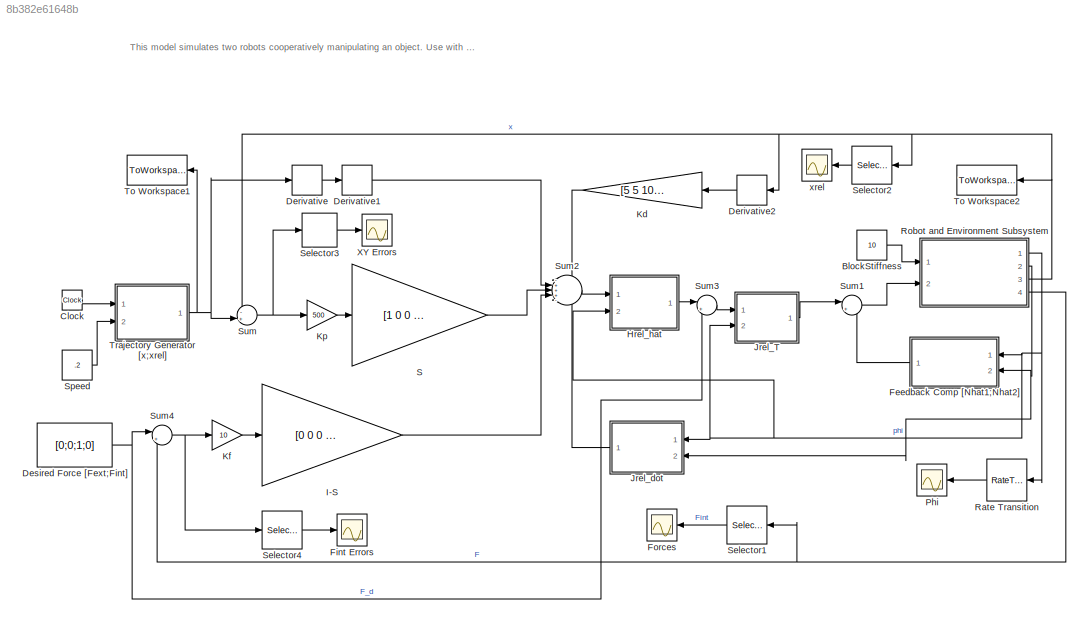
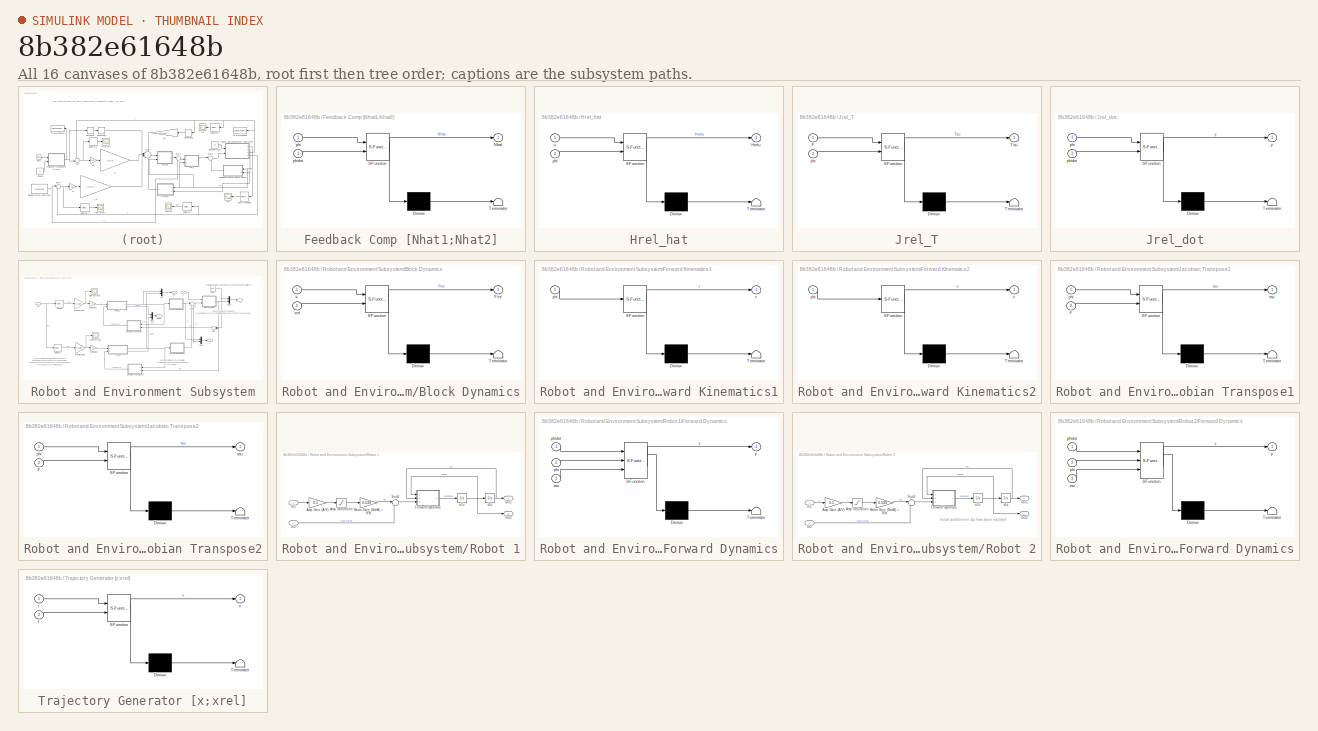
[diagram: thumbnail index - all 16 canvases of the model, root first then tree order]
MODEL slx_8b382e61648b
KIND model
CONFIG AbsTol = auto
CONFIG EnableMultiTasking = on
CONFIG FixedStep = .002
CONFIG MaxStep = auto
CONFIG MinStep = auto
CONFIG RelTol = 1e-3
CONFIG SampleTimeConstraint = Unconstrained
CONFIG Solver = ode45
CONFIG SolverName = ode45
CONFIG StartTime = 0.0
CONFIG StopTime = 50
BLOCK [Constant] BlockStiffness
  AttributesFormatString = (N/mm)
  Value = 10
BLOCK [Clock] Clock
BLOCK [Derivative] Derivative
BLOCK [Derivative] Derivative1
BLOCK [Derivative] Derivative2
BLOCK [Constant] Desired Force [Fext;Fint]
  Value = [0;0;1;0]
BLOCK [SubSystem] Feedback Comp [Nhat1;Nhat2]
  ErrorFcn = Stateflow.Translate.translate
  PermitHierarchicalResolution = ExplicitOnly
  Ports = [2, 1]
  RequestExecContextInheritance = off
  SFBlockType = MATLAB Function
  TreatAsAtomicUnit = on
BLOCK [Demux] Feedback Comp [Nhat1;Nhat2]/ Demux 
  Outputs = 1
  Ports = [1, 1]
BLOCK [S-Function] Feedback Comp [Nhat1;Nhat2]/ SFunction 
  EnableBusSupport = on
  FunctionName = sf_sfun
  PortCounts = [2 2]
  Ports = [2, 2]
  SFcnIsStateOwnerBlock = off
  SFunctionDeploymentMode = off
  Tag = Stateflow S-Function multiarm_hybrid_control 4
BLOCK [Terminator] Feedback Comp [Nhat1;Nhat2]/ Terminator 
BLOCK [Outport] Feedback Comp [Nhat1;Nhat2]/Nhat
  IconDisplay = Port number
BLOCK [Inport] Feedback Comp [Nhat1;Nhat2]/phi
  IconDisplay = Port number
BLOCK [Inport] Feedback Comp [Nhat1;Nhat2]/phidot
  IconDisplay = Port number
  Port = 2
BLOCK [Scope] Fint Errors
  Floating = off
  NumInputPorts = 1
  Ports = [1]
  ScopeSpecificationString = Simulink.scopes.TimeScopeBlockCfg('CurrentConfiguration', extmgr.ConfigurationSet(extmgr.Configuration('Core','General UI',true),extmgr.Configuration('Core','Source UI',true),extmgr.Configuration('Sources','WiredSimulink',true,'DataLogging',true,'DataLoggingVariableName','ForceErrors','DataLoggingSaveFormat','Structure','DataLoggingDecimation','1','DataLoggingDecimateData',true),extmgr.Configurati...<+1749ch>
BLOCK [Scope] Forces
  Floating = off
  NumInputPorts = 1
  Ports = [1]
  ScopeSpecificationString = Simulink.scopes.TimeScopeBlockCfg('CurrentConfiguration', extmgr.ConfigurationSet(extmgr.Configuration('Core','General UI',true),extmgr.Configuration('Core','Source UI',true),extmgr.Configuration('Sources','WiredSimulink',true,'DataLogging',true,'DataLoggingVariableName','F','DataLoggingSaveFormat','Structure','DataLoggingDecimation','1','DataLoggingDecimateData',true),extmgr.Configuration('Visual...<+1723ch>
BLOCK [SubSystem] Hrel_hat
  ErrorFcn = Stateflow.Translate.translate
  PermitHierarchicalResolution = ExplicitOnly
  Ports = [2, 1]
  RequestExecContextInheritance = off
  SFBlockType = MATLAB Function
  TreatAsAtomicUnit = on
BLOCK [Demux] Hrel_hat/ Demux 
  Outputs = 1
  Ports = [1, 1]
BLOCK [S-Function] Hrel_hat/ SFunction 
  EnableBusSupport = on
  FunctionName = sf_sfun
  PortCounts = [2 2]
  Ports = [2, 2]
  SFcnIsStateOwnerBlock = off
  SFunctionDeploymentMode = off
  Tag = Stateflow S-Function multiarm_hybrid_control 3
BLOCK [Terminator] Hrel_hat/ Terminator 
BLOCK [Outport] Hrel_hat/Hrelu
  IconDisplay = Port number
BLOCK [Inport] Hrel_hat/phi
  IconDisplay = Port number
  Port = 2
BLOCK [Inport] Hrel_hat/u
  IconDisplay = Port number
BLOCK [Gain] I-S
  Gain = [0 0 0 0; 0 0 0 0; 0 0 1 0; 0 0 0 1]
  Multiplication = Matrix(K*u)
  OutDataTypeStr = Inherit: Inherit via internal rule
  ParamDataTypeStr = Inherit: Inherit via internal rule
  SaturateOnIntegerOverflow = off
BLOCK [SubSystem] Jrel_T
  ErrorFcn = Stateflow.Translate.translate
  PermitHierarchicalResolution = ExplicitOnly
  Ports = [2, 1]
  RequestExecContextInheritance = off
  SFBlockType = MATLAB Function
  TreatAsAtomicUnit = on
BLOCK [Demux] Jrel_T/ Demux 
  Outputs = 1
  Ports = [1, 1]
BLOCK [S-Function] Jrel_T/ SFunction 
  EnableBusSupport = on
  FunctionName = sf_sfun
  PortCounts = [2 2]
  Ports = [2, 2]
  SFcnIsStateOwnerBlock = off
  SFunctionDeploymentMode = off
  Tag = Stateflow S-Function multiarm_hybrid_control 6
BLOCK [Terminator] Jrel_T/ Terminator 
BLOCK [Inport] Jrel_T/F
  IconDisplay = Port number
BLOCK [Outport] Jrel_T/Tau
  IconDisplay = Port number
BLOCK [Inport] Jrel_T/phi
  IconDisplay = Port number
  Port = 2
BLOCK [SubSystem] Jrel_dot
  ErrorFcn = Stateflow.Translate.translate
  PermitHierarchicalResolution = ExplicitOnly
  Ports = [2, 1]
  RequestExecContextInheritance = off
  SFBlockType = MATLAB Function
  TreatAsAtomicUnit = on
BLOCK [Demux] Jrel_dot/ Demux 
  Outputs = 1
  Ports = [1, 1]
BLOCK [S-Function] Jrel_dot/ SFunction 
  EnableBusSupport = on
  FunctionName = sf_sfun
  PortCounts = [2 2]
  Ports = [2, 2]
  SFcnIsStateOwnerBlock = off
  SFunctionDeploymentMode = off
  Tag = Stateflow S-Function multiarm_hybrid_control 8
BLOCK [Terminator] Jrel_dot/ Terminator 
BLOCK [Inport] Jrel_dot/phi
  IconDisplay = Port number
BLOCK [Inport] Jrel_dot/phidot
  IconDisplay = Port number
  Port = 2
BLOCK [Outport] Jrel_dot/y
  IconDisplay = Port number
BLOCK [Gain] Kd
  Gain = [5 5 100 100]
  OutDataTypeStr = Inherit: Inherit via internal rule
  ParamDataTypeStr = Inherit: Inherit via internal rule
  SaturateOnIntegerOverflow = off
BLOCK [Gain] Kf
  Gain = 10
  OutDataTypeStr = Inherit: Inherit via internal rule
  ParamDataTypeStr = Inherit: Inherit via internal rule
  SaturateOnIntegerOverflow = off
BLOCK [Gain] Kp
  Gain = 500
  OutDataTypeStr = Inherit: Inherit via internal rule
  ParamDataTypeStr = Inherit: Inherit via internal rule
  SaturateOnIntegerOverflow = off
BLOCK [Scope] Phi
  AttributesFormatString = SampleTime =%<SampleTime>\n(GUI redraw rate)
  Floating = off
  NumInputPorts = 1
  Ports = [1]
  ScopeSpecificationString = Simulink.scopes.TimeScopeBlockCfg('CurrentConfiguration', extmgr.ConfigurationSet(extmgr.Configuration('Core','General UI',true),extmgr.Configuration('Core','Source UI',true),extmgr.Configuration('Sources','WiredSimulink',true,'DataLoggingVariableName','ScopeData1','DataLoggingSaveFormat','StructureWithTime','DataLoggingDecimation','10','DataLoggingDecimateData',true,'SampleTime','0.1'),extmgr.Con...<+1762ch>
BLOCK [RateTransition] Rate Transition
  OutPortSampleTime = 0.05
  OutPortSampleTimeMultiple = 10
  OutPortSampleTimeOpt = Inherit
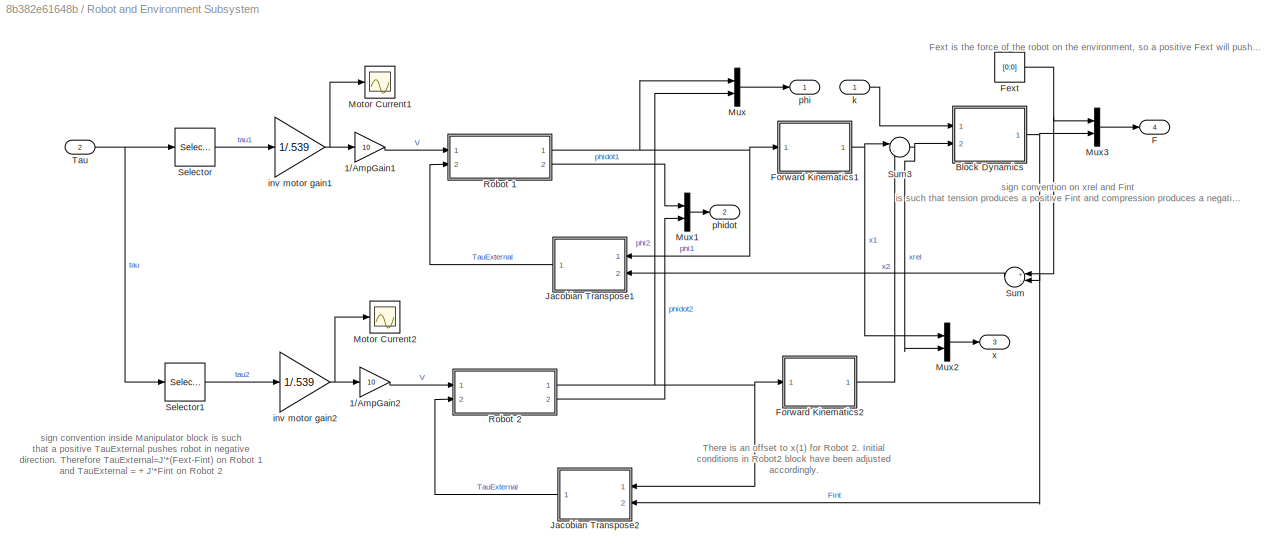
BLOCK [SubSystem] Robot and Environment Subsystem
  Ports = [2, 4]
  RequestExecContextInheritance = off
BLOCK [Gain] Robot and Environment Subsystem/1//AmpGain1
  Gain = 10
  OutDataTypeStr = Inherit: Inherit via internal rule
  ParamDataTypeStr = Inherit: Inherit via internal rule
  SaturateOnIntegerOverflow = off
BLOCK [Gain] Robot and Environment Subsystem/1//AmpGain2
  Gain = 10
  OutDataTypeStr = Inherit: Inherit via internal rule
  ParamDataTypeStr = Inherit: Inherit via internal rule
  SaturateOnIntegerOverflow = off
BLOCK [SubSystem] Robot and Environment Subsystem/Block Dynamics
  ErrorFcn = Stateflow.Translate.translate
  PermitHierarchicalResolution = ExplicitOnly
  Ports = [2, 1]
  RequestExecContextInheritance = off
  SFBlockType = MATLAB Function
  TreatAsAtomicUnit = on
BLOCK [Demux] Robot and Environment Subsystem/Block Dynamics/ Demux 
  Outputs = 1
  Ports = [1, 1]
BLOCK [S-Function] Robot and Environment Subsystem/Block Dynamics/ SFunction 
  EnableBusSupport = on
  FunctionName = sf_sfun
  PortCounts = [2 2]
  Ports = [2, 2]
  SFcnIsStateOwnerBlock = off
  SFunctionDeploymentMode = off
  Tag = Stateflow S-Function multiarm_hybrid_control 5
BLOCK [Terminator] Robot and Environment Subsystem/Block Dynamics/ Terminator 
BLOCK [Outport] Robot and Environment Subsystem/Block Dynamics/Fint
  IconDisplay = Port number
BLOCK [Inport] Robot and Environment Subsystem/Block Dynamics/k
  IconDisplay = Port number
BLOCK [Inport] Robot and Environment Subsystem/Block Dynamics/xrel
  IconDisplay = Port number
  Port = 2
BLOCK [Outport] Robot and Environment Subsystem/F
  IconDisplay = Port number
  Port = 4
BLOCK [Constant] Robot and Environment Subsystem/Fext
  Value = [0;0]
BLOCK [SubSystem] Robot and Environment Subsystem/Forward Kinematics1
  ErrorFcn = Stateflow.Translate.translate
  PermitHierarchicalResolution = ExplicitOnly
  Ports = [1, 1]
  RequestExecContextInheritance = off
  SFBlockType = MATLAB Function
  TreatAsAtomicUnit = on
BLOCK [Demux] Robot and Environment Subsystem/Forward Kinematics1/ Demux 
  Outputs = 1
  Ports = [1, 1]
BLOCK [S-Function] Robot and Environment Subsystem/Forward Kinematics1/ SFunction 
  EnableBusSupport = on
  FunctionName = sf_sfun
  PortCounts = [1 2]
  Ports = [1, 2]
  SFcnIsStateOwnerBlock = off
  SFunctionDeploymentMode = off
  Tag = Stateflow S-Function multiarm_hybrid_control 9
BLOCK [Terminator] Robot and Environment Subsystem/Forward Kinematics1/ Terminator 
BLOCK [Inport] Robot and Environment Subsystem/Forward Kinematics1/phi
  IconDisplay = Port number
BLOCK [Outport] Robot and Environment Subsystem/Forward Kinematics1/x
  IconDisplay = Port number
BLOCK [SubSystem] Robot and Environment Subsystem/Forward Kinematics2
  ErrorFcn = Stateflow.Translate.translate
  PermitHierarchicalResolution = ExplicitOnly
  Ports = [1, 1]
  RequestExecContextInheritance = off
  SFBlockType = MATLAB Function
  TreatAsAtomicUnit = on
BLOCK [Demux] Robot and Environment Subsystem/Forward Kinematics2/ Demux 
  Outputs = 1
  Ports = [1, 1]
BLOCK [S-Function] Robot and Environment Subsystem/Forward Kinematics2/ SFunction 
  EnableBusSupport = on
  FunctionName = sf_sfun
  PortCounts = [1 2]
  Ports = [1, 2]
  SFcnIsStateOwnerBlock = off
  SFunctionDeploymentMode = off
  Tag = Stateflow S-Function multiarm_hybrid_control 10
BLOCK [Terminator] Robot and Environment Subsystem/Forward Kinematics2/ Terminator 
BLOCK [Inport] Robot and Environment Subsystem/Forward Kinematics2/phi
  IconDisplay = Port number
BLOCK [Outport] Robot and Environment Subsystem/Forward Kinematics2/x
  IconDisplay = Port number
BLOCK [SubSystem] Robot and Environment Subsystem/Jacobian Transpose1
  ErrorFcn = Stateflow.Translate.translate
  PermitHierarchicalResolution = ExplicitOnly
  Ports = [2, 1]
  RequestExecContextInheritance = off
  SFBlockType = MATLAB Function
  TreatAsAtomicUnit = on
BLOCK [Demux] Robot and Environment Subsystem/Jacobian Transpose1/ Demux 
  Outputs = 1
  Ports = [1, 1]
BLOCK [S-Function] Robot and Environment Subsystem/Jacobian Transpose1/ SFunction 
  EnableBusSupport = on
  FunctionName = sf_sfun
  PortCounts = [2 2]
  Ports = [2, 2]
  SFcnIsStateOwnerBlock = off
  SFunctionDeploymentMode = off
  Tag = Stateflow S-Function multiarm_hybrid_control 1
BLOCK [Terminator] Robot and Environment Subsystem/Jacobian Transpose1/ Terminator 
BLOCK [Inport] Robot and Environment Subsystem/Jacobian Transpose1/F
  IconDisplay = Port number
  Port = 2
BLOCK [Inport] Robot and Environment Subsystem/Jacobian Transpose1/phi
  IconDisplay = Port number
BLOCK [Outport] Robot and Environment Subsystem/Jacobian Transpose1/tau
  IconDisplay = Port number
BLOCK [SubSystem] Robot and Environment Subsystem/Jacobian Transpose2
  ErrorFcn = Stateflow.Translate.translate
  PermitHierarchicalResolution = ExplicitOnly
  Ports = [2, 1]
  RequestExecContextInheritance = off
  SFBlockType = MATLAB Function
  TreatAsAtomicUnit = on
BLOCK [Demux] Robot and Environment Subsystem/Jacobian Transpose2/ Demux 
  Outputs = 1
  Ports = [1, 1]
BLOCK [S-Function] Robot and Environment Subsystem/Jacobian Transpose2/ SFunction 
  EnableBusSupport = on
  FunctionName = sf_sfun
  PortCounts = [2 2]
  Ports = [2, 2]
  SFcnIsStateOwnerBlock = off
  SFunctionDeploymentMode = off
  Tag = Stateflow S-Function multiarm_hybrid_control 11
BLOCK [Terminator] Robot and Environment Subsystem/Jacobian Transpose2/ Terminator 
BLOCK [Inport] Robot and Environment Subsystem/Jacobian Transpose2/F
  IconDisplay = Port number
  Port = 2
BLOCK [Inport] Robot and Environment Subsystem/Jacobian Transpose2/phi
  IconDisplay = Port number
BLOCK [Outport] Robot and Environment Subsystem/Jacobian Transpose2/tau
  IconDisplay = Port number
BLOCK [Scope] Robot and Environment Subsystem/Motor Current1
  Floating = off
  NumInputPorts = 1
  Ports = [1]
  ScopeSpecificationString = Simulink.scopes.TimeScopeBlockCfg('CurrentConfiguration', extmgr.ConfigurationSet(extmgr.Configuration('Core','General UI',true),extmgr.Configuration('Core','Source UI',true),extmgr.Configuration('Sources','WiredSimulink',true,'DataLoggingVariableName','ScopeData1','DataLoggingSaveFormat','StructureWithTime','DataLoggingDecimation','1','DataLoggingDecimateData',true),extmgr.Configuration('Visuals'...<+1742ch>
BLOCK [Scope] Robot and Environment Subsystem/Motor Current2
  Floating = off
  NumInputPorts = 1
  Ports = [1]
  ScopeSpecificationString = Simulink.scopes.TimeScopeBlockCfg('CurrentConfiguration', extmgr.ConfigurationSet(extmgr.Configuration('Core','General UI',true),extmgr.Configuration('Core','Source UI',true),extmgr.Configuration('Sources','WiredSimulink',true,'DataLoggingSaveFormat','StructureWithTime','DataLoggingDecimation','1','DataLoggingDecimateData',true),extmgr.Configuration('Visuals','Time Domain',true,'SerializedDisplays...<+1709ch>
BLOCK [Mux] Robot and Environment Subsystem/Mux
  DisplayOption = bar
  Inputs = 2
  Ports = [2, 1]
BLOCK [Mux] Robot and Environment Subsystem/Mux1
  DisplayOption = bar
  Inputs = 2
  Ports = [2, 1]
BLOCK [Mux] Robot and Environment Subsystem/Mux2
  DisplayOption = bar
  Inputs = 2
  Ports = [2, 1]
BLOCK [Mux] Robot and Environment Subsystem/Mux3
  DisplayOption = bar
  Inputs = 2
  Ports = [2, 1]
BLOCK [SubSystem] Robot and Environment Subsystem/Robot 1
  Ports = [2, 2]
  RequestExecContextInheritance = off
BLOCK [Gain] Robot and Environment Subsystem/Robot 1/Amp Gain (A//V)
  Gain = 0.1
  OutDataTypeStr = Inherit: Inherit via internal rule
  ParamDataTypeStr = Inherit: Inherit via internal rule
  SaturateOnIntegerOverflow = off
BLOCK [Saturate] Robot and Environment Subsystem/Robot 1/Amp Saturation
  InputPortMap = u0
  LowerLimit = -1
  Ports = [1, 1]
  UpperLimit = 1
  ZeroCross = off
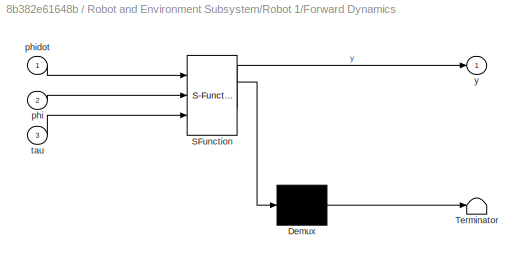
BLOCK [SubSystem] Robot and Environment Subsystem/Robot 1/Forward Dynamics
  ErrorFcn = Stateflow.Translate.translate
  PermitHierarchicalResolution = ExplicitOnly
  Ports = [3, 1]
  RequestExecContextInheritance = off
  SFBlockType = MATLAB Function
  TreatAsAtomicUnit = on
BLOCK [Demux] Robot and Environment Subsystem/Robot 1/Forward Dynamics/ Demux 
  Outputs = 1
  Ports = [1, 1]
BLOCK [S-Function] Robot and Environment Subsystem/Robot 1/Forward Dynamics/ SFunction 
  EnableBusSupport = on
  FunctionName = sf_sfun
  PortCounts = [3 2]
  Ports = [3, 2]
  SFcnIsStateOwnerBlock = off
  SFunctionDeploymentMode = off
  Tag = Stateflow S-Function multiarm_hybrid_control 2
BLOCK [Terminator] Robot and Environment Subsystem/Robot 1/Forward Dynamics/ Terminator 
BLOCK [Inport] Robot and Environment Subsystem/Robot 1/Forward Dynamics/phi
  IconDisplay = Port number
  Port = 2
BLOCK [Inport] Robot and Environment Subsystem/Robot 1/Forward Dynamics/phidot
  IconDisplay = Port number
BLOCK [Inport] Robot and Environment Subsystem/Robot 1/Forward Dynamics/tau
  IconDisplay = Port number
  Port = 3
BLOCK [Outport] Robot and Environment Subsystem/Robot 1/Forward Dynamics/y
  IconDisplay = Port number
BLOCK [Inport] Robot and Environment Subsystem/Robot 1/In1
  IconDisplay = Port number
BLOCK [Inport] Robot and Environment Subsystem/Robot 1/In2
  IconDisplay = Port number
  Port = 2
BLOCK [Gain] Robot and Environment Subsystem/Robot 1/Motor Gain (Nm//A) = N*kt
  Gain = 0.539
  OutDataTypeStr = Inherit: Inherit via internal rule
  ParamDataTypeStr = Inherit: Inherit via internal rule
  SaturateOnIntegerOverflow = off
BLOCK [Outport] Robot and Environment Subsystem/Robot 1/Out1
  IconDisplay = Port number
BLOCK [Outport] Robot and Environment Subsystem/Robot 1/Out2
  IconDisplay = Port number
  Port = 2
BLOCK [Sum] Robot and Environment Subsystem/Robot 1/Sum2
  IconShape = round
  InputSameDT = off
  Inputs = |+-
  OutDataTypeStr = Inherit: Inherit via internal rule
  Ports = [2, 1]
  SaturateOnIntegerOverflow = off
BLOCK [Integrator] Robot and Environment Subsystem/Robot 1/a2v
  Ports = [1, 1]
BLOCK [Integrator] Robot and Environment Subsystem/Robot 1/v2p
  InitialCondition = [1.1934;-0.2661]
  Ports = [1, 1]
BLOCK [SubSystem] Robot and Environment Subsystem/Robot 2
  Ports = [2, 2]
  RequestExecContextInheritance = off
BLOCK [Gain] Robot and Environment Subsystem/Robot 2/Amp Gain (A//V)
  Gain = 0.1
  OutDataTypeStr = Inherit: Inherit via internal rule
  ParamDataTypeStr = Inherit: Inherit via internal rule
  SaturateOnIntegerOverflow = off
BLOCK [Saturate] Robot and Environment Subsystem/Robot 2/Amp Saturation
  InputPortMap = u0
  LowerLimit = -1
  Ports = [1, 1]
  UpperLimit = 1
  ZeroCross = off
BLOCK [SubSystem] Robot and Environment Subsystem/Robot 2/Forward Dynamics
  ErrorFcn = Stateflow.Translate.translate
  PermitHierarchicalResolution = ExplicitOnly
  Ports = [3, 1]
  RequestExecContextInheritance = off
  SFBlockType = MATLAB Function
  TreatAsAtomicUnit = on
BLOCK [Demux] Robot and Environment Subsystem/Robot 2/Forward Dynamics/ Demux 
  Outputs = 1
  Ports = [1, 1]
BLOCK [S-Function] Robot and Environment Subsystem/Robot 2/Forward Dynamics/ SFunction 
  EnableBusSupport = on
  FunctionName = sf_sfun
  PortCounts = [3 2]
  Ports = [3, 2]
  SFcnIsStateOwnerBlock = off
  SFunctionDeploymentMode = off
  Tag = Stateflow S-Function multiarm_hybrid_control 12
BLOCK [Terminator] Robot and Environment Subsystem/Robot 2/Forward Dynamics/ Terminator 
BLOCK [Inport] Robot and Environment Subsystem/Robot 2/Forward Dynamics/phi
  IconDisplay = Port number
  Port = 2
BLOCK [Inport] Robot and Environment Subsystem/Robot 2/Forward Dynamics/phidot
  IconDisplay = Port number
BLOCK [Inport] Robot and Environment Subsystem/Robot 2/Forward Dynamics/tau
  IconDisplay = Port number
  Port = 3
BLOCK [Outport] Robot and Environment Subsystem/Robot 2/Forward Dynamics/y
  IconDisplay = Port number
BLOCK [Inport] Robot and Environment Subsystem/Robot 2/In1
  IconDisplay = Port number
BLOCK [Inport] Robot and Environment Subsystem/Robot 2/In2
  IconDisplay = Port number
  Port = 2
BLOCK [Gain] Robot and Environment Subsystem/Robot 2/Motor Gain (Nm//A) = N*kt
  Gain = 0.539
  OutDataTypeStr = Inherit: Inherit via internal rule
  ParamDataTypeStr = Inherit: Inherit via internal rule
  SaturateOnIntegerOverflow = off
BLOCK [Outport] Robot and Environment Subsystem/Robot 2/Out1
  IconDisplay = Port number
BLOCK [Outport] Robot and Environment Subsystem/Robot 2/Out2
  IconDisplay = Port number
  Port = 2
BLOCK [Sum] Robot and Environment Subsystem/Robot 2/Sum2
  IconShape = round
  InputSameDT = off
  Inputs = |+-
  OutDataTypeStr = Inherit: Inherit via internal rule
  Ports = [2, 1]
  SaturateOnIntegerOverflow = off
BLOCK [Integrator] Robot and Environment Subsystem/Robot 2/a2v
  Ports = [1, 1]
BLOCK [Integrator] Robot and Environment Subsystem/Robot 2/v2p
  InitialCondition = [pi-2.2961;pi+0.0818]
  Ports = [1, 1]
BLOCK [Selector] Robot and Environment Subsystem/Selector
  IndexOptions = Index vector (dialog)
  Indices = [1 2]
  InputPortWidth = 4
  OutputSizes = 1
  Ports = [1, 1]
BLOCK [Selector] Robot and Environment Subsystem/Selector1
  IndexOptions = Index vector (dialog)
  Indices = [3 4]
  InputPortWidth = 4
  OutputSizes = 1
  Ports = [1, 1]
BLOCK [Sum] Robot and Environment Subsystem/Sum
  IconShape = round
  InputSameDT = off
  Inputs = +-|
  OutDataTypeStr = Inherit: Inherit via internal rule
  Ports = [2, 1]
  SaturateOnIntegerOverflow = off
BLOCK [Sum] Robot and Environment Subsystem/Sum3
  IconShape = round
  InputSameDT = off
  Inputs = |-+
  OutDataTypeStr = Inherit: Inherit via internal rule
  Ports = [2, 1]
  SaturateOnIntegerOverflow = off
BLOCK [Inport] Robot and Environment Subsystem/Tau
  IconDisplay = Port number
  Port = 2
BLOCK [Gain] Robot and Environment Subsystem/inv motor gain1
  Gain = 1/.539
  OutDataTypeStr = Inherit: Inherit via internal rule
  ParamDataTypeStr = Inherit: Inherit via internal rule
  SaturateOnIntegerOverflow = off
BLOCK [Gain] Robot and Environment Subsystem/inv motor gain2
  Gain = 1/.539
  OutDataTypeStr = Inherit: Inherit via internal rule
  ParamDataTypeStr = Inherit: Inherit via internal rule
  SaturateOnIntegerOverflow = off
BLOCK [Inport] Robot and Environment Subsystem/k
  IconDisplay = Port number
BLOCK [Outport] Robot and Environment Subsystem/phi
  IconDisplay = Port number
BLOCK [Outport] Robot and Environment Subsystem/phidot
  IconDisplay = Port number
  Port = 2
BLOCK [Outport] Robot and Environment Subsystem/x
  IconDisplay = Port number
  Port = 3
BLOCK [Gain] S
  Gain = [1 0 0 0; 0 1 0 0; 0 0 0 0; 0 0 0 0]
  Multiplication = Matrix(K*u)
  OutDataTypeStr = Inherit: Inherit via internal rule
  ParamDataTypeStr = Inherit: Inherit via internal rule
  SaturateOnIntegerOverflow = off
BLOCK [Selector] Selector1
  IndexOptions = Index vector (dialog)
  Indices = [3 4]
  InputPortWidth = 4
  OutputSizes = 1
  Ports = [1, 1]
BLOCK [Selector] Selector2
  IndexOptions = Index vector (dialog)
  Indices = [3 4]
  InputPortWidth = 4
  OutputSizes = 1
  Ports = [1, 1]
BLOCK [Selector] Selector3
  IndexOptions = Index vector (dialog)
  Indices = [1 2]
  InputPortWidth = 4
  OutputSizes = 1
  Ports = [1, 1]
BLOCK [Selector] Selector4
  IndexOptions = Index vector (dialog)
  Indices = [3 4]
  InputPortWidth = 4
  OutputSizes = 1
  Ports = [1, 1]
BLOCK [Constant] Speed
  AttributesFormatString = (circles/sec)
  Value = .2
BLOCK [Sum] Sum
  IconShape = round
  InputSameDT = off
  Inputs = -+|
  OutDataTypeStr = Inherit: Inherit via internal rule
  Ports = [2, 1]
  SaturateOnIntegerOverflow = off
BLOCK [Sum] Sum1
  IconShape = round
  InputSameDT = off
  Inputs = |++
  OutDataTypeStr = Inherit: Inherit via internal rule
  Ports = [2, 1]
  SaturateOnIntegerOverflow = off
BLOCK [Sum] Sum2
  IconShape = round
  InputSameDT = off
  Inputs = -+++-
  OutDataTypeStr = Inherit: Inherit via internal rule
  Ports = [5, 1]
  SaturateOnIntegerOverflow = off
BLOCK [Sum] Sum3
  IconShape = round
  InputSameDT = off
  Inputs = |++
  OutDataTypeStr = Inherit: Inherit via internal rule
  Ports = [2, 1]
  SaturateOnIntegerOverflow = off
BLOCK [Sum] Sum4
  IconShape = round
  InputSameDT = off
  Inputs = |+-
  OutDataTypeStr = Inherit: Inherit via internal rule
  Ports = [2, 1]
  SaturateOnIntegerOverflow = off
BLOCK [ToWorkspace] To Workspace1
  MaxDataPoints = inf
  Ports = [1]
  SampleTime = -1
  VariableName = xy_d
BLOCK [ToWorkspace] To Workspace2
  MaxDataPoints = inf
  Ports = [1]
  SampleTime = -1
  VariableName = xy
BLOCK [SubSystem] Trajectory Generator [x;xrel]
  ErrorFcn = Stateflow.Translate.translate
  PermitHierarchicalResolution = ExplicitOnly
  Ports = [2, 1]
  RequestExecContextInheritance = off
  SFBlockType = MATLAB Function
  TreatAsAtomicUnit = on
BLOCK [Demux] Trajectory Generator [x;xrel]/ Demux 
  Outputs = 1
  Ports = [1, 1]
BLOCK [S-Function] Trajectory Generator [x;xrel]/ SFunction 
  EnableBusSupport = on
  FunctionName = sf_sfun
  PortCounts = [2 2]
  Ports = [2, 2]
  SFcnIsStateOwnerBlock = off
  SFunctionDeploymentMode = off
  Tag = Stateflow S-Function multiarm_hybrid_control 7
BLOCK [Terminator] Trajectory Generator [x;xrel]/ Terminator 
BLOCK [Inport] Trajectory Generator [x;xrel]/f
  IconDisplay = Port number
  Port = 2
BLOCK [Inport] Trajectory Generator [x;xrel]/t
  IconDisplay = Port number
BLOCK [Outport] Trajectory Generator [x;xrel]/x
  IconDisplay = Port number
BLOCK [Scope] XY Errors
  Floating = off
  NumInputPorts = 1
  Ports = [1]
  ScopeSpecificationString = Simulink.scopes.TimeScopeBlockCfg('CurrentConfiguration', extmgr.ConfigurationSet(extmgr.Configuration('Core','General UI',true),extmgr.Configuration('Core','Source UI',true),extmgr.Configuration('Sources','WiredSimulink',true,'DataLogging',true,'DataLoggingVariableName','xy_errors','DataLoggingSaveFormat','StructureWithTime','DataLoggingDecimation','1','DataLoggingDecimateData',true),extmgr.Confi...<+1755ch>
BLOCK [Scope] xrel
  Floating = off
  NumInputPorts = 1
  Ports = [1]
  ScopeSpecificationString = Simulink.scopes.TimeScopeBlockCfg('CurrentConfiguration', extmgr.ConfigurationSet(extmgr.Configuration('Core','General UI',true),extmgr.Configuration('Core','Source UI',true),extmgr.Configuration('Sources','WiredSimulink',true,'DataLogging',true,'DataLoggingVariableName','xrel','DataLoggingSaveFormat','Structure','DataLoggingDecimation','1','DataLoggingDecimateData',true),extmgr.Configuration('Vis...<+1742ch>
ANNOTATION (root): This model simulates two robots cooperatively manipulating an object. Use with MultiRobotGUI.
ANNOTATION Robot and Environment Subsystem: Fext is the force of the robot on the environment, so a positive Fext will push the robot in the negative direction.
ANNOTATION Robot and Environment Subsystem: There is an offset to x(1) for Robot 2. Initial conditions in Robot2 block have been adjusted accordingly.
ANNOTATION Robot and Environment Subsystem: sign convention inside Manipulator block is such that a positive TauExternal pushes robot in negative direction. Therefore TauExternal=J'*(Fext-Fint) on Robot 1 and TauExternal = + J'*Fint on Robot 2
ANNOTATION Robot and Environment Subsystem: sign convention on xrel and Fint is such that tension produces a positive Fint and compression produces a negative Fint
ANNOTATION Robot and Environment Subsystem/Robot 2: Initial conditions in v2p have been adjusted
LINE BlockStiffness:1 -> Robot and Environment Subsystem:1
LINE Clock:1 -> Trajectory Generator [x;xrel]:1
LINE Derivative1:1 -> Sum2:2
LINE Derivative2:1 -> Kd:1
LINE Derivative:1 -> Derivative1:1
NET Desired Force [Fext;Fint]:1 -> Sum3:2, Sum4:1
LINE Feedback Comp [Nhat1;Nhat2]:1 -> Sum1:2
LINE Hrel_hat:1 -> Sum3:1
LINE I-S:1 -> Sum2:4
LINE Jrel_T:1 -> Sum1:1
LINE Jrel_dot:1 -> Sum2:5
LINE Kd:1 -> Sum2:1
LINE Kf:1 -> I-S:1
LINE Kp:1 -> S:1
LINE Rate Transition:1 -> Phi:1
LINE Robot and Environment Subsystem/1//AmpGain1:1 -> Robot and Environment Subsystem/Robot 1:1
LINE Robot and Environment Subsystem/1//AmpGain2:1 -> Robot and Environment Subsystem/Robot 2:1
NET Robot and Environment Subsystem/Block Dynamics:1 -> Robot and Environment Subsystem/Jacobian Transpose2:2, Robot and Environment Subsystem/Mux3:2, Robot and Environment Subsystem/Sum:2
NET Robot and Environment Subsystem/Fext:1 -> Robot and Environment Subsystem/Mux3:1, Robot and Environment Subsystem/Sum:1
NET Robot and Environment Subsystem/Forward Kinematics1:1 -> Robot and Environment Subsystem/Mux2:1, Robot and Environment Subsystem/Sum3:1
LINE Robot and Environment Subsystem/Forward Kinematics2:1 -> Robot and Environment Subsystem/Sum3:2
LINE Robot and Environment Subsystem/Jacobian Transpose1:1 -> Robot and Environment Subsystem/Robot 1:2
LINE Robot and Environment Subsystem/Jacobian Transpose2:1 -> Robot and Environment Subsystem/Robot 2:2
LINE Robot and Environment Subsystem/Mux1:1 -> Robot and Environment Subsystem/phidot:1
LINE Robot and Environment Subsystem/Mux2:1 -> Robot and Environment Subsystem/x:1
LINE Robot and Environment Subsystem/Mux3:1 -> Robot and Environment Subsystem/F:1
LINE Robot and Environment Subsystem/Mux:1 -> Robot and Environment Subsystem/phi:1
LINE Robot and Environment Subsystem/Robot 1/Amp Gain (A//V):1 -> Robot and Environment Subsystem/Robot 1/Amp Saturation:1
LINE Robot and Environment Subsystem/Robot 1/Amp Saturation:1 -> Robot and Environment Subsystem/Robot 1/Motor Gain (Nm//A) = N*kt:1
LINE Robot and Environment Subsystem/Robot 1/Forward Dynamics:1 -> Robot and Environment Subsystem/Robot 1/a2v:1
LINE Robot and Environment Subsystem/Robot 1/In1:1 -> Robot and Environment Subsystem/Robot 1/Amp Gain (A//V):1
LINE Robot and Environment Subsystem/Robot 1/In2:1 -> Robot and Environment Subsystem/Robot 1/Sum2:2
LINE Robot and Environment Subsystem/Robot 1/Motor Gain (Nm//A) = N*kt:1 -> Robot and Environment Subsystem/Robot 1/Sum2:1
LINE Robot and Environment Subsystem/Robot 1/Sum2:1 -> Robot and Environment Subsystem/Robot 1/Forward Dynamics:3
NET Robot and Environment Subsystem/Robot 1/a2v:1 -> Robot and Environment Subsystem/Robot 1/Forward Dynamics:1, Robot and Environment Subsystem/Robot 1/Out2:1, Robot and Environment Subsystem/Robot 1/v2p:1
NET Robot and Environment Subsystem/Robot 1/v2p:1 -> Robot and Environment Subsystem/Robot 1/Forward Dynamics:2, Robot and Environment Subsystem/Robot 1/Out1:1
NET Robot and Environment Subsystem/Robot 1:1 -> Robot and Environment Subsystem/Forward Kinematics1:1, Robot and Environment Subsystem/Jacobian Transpose1:1, Robot and Environment Subsystem/Mux:1
LINE Robot and Environment Subsystem/Robot 1:2 -> Robot and Environment Subsystem/Mux1:1
LINE Robot and Environment Subsystem/Robot 2/Amp Gain (A//V):1 -> Robot and Environment Subsystem/Robot 2/Amp Saturation:1
LINE Robot and Environment Subsystem/Robot 2/Amp Saturation:1 -> Robot and Environment Subsystem/Robot 2/Motor Gain (Nm//A) = N*kt:1
LINE Robot and Environment Subsystem/Robot 2/Forward Dynamics:1 -> Robot and Environment Subsystem/Robot 2/a2v:1
LINE Robot and Environment Subsystem/Robot 2/In1:1 -> Robot and Environment Subsystem/Robot 2/Amp Gain (A//V):1
LINE Robot and Environment Subsystem/Robot 2/In2:1 -> Robot and Environment Subsystem/Robot 2/Sum2:2
LINE Robot and Environment Subsystem/Robot 2/Motor Gain (Nm//A) = N*kt:1 -> Robot and Environment Subsystem/Robot 2/Sum2:1
LINE Robot and Environment Subsystem/Robot 2/Sum2:1 -> Robot and Environment Subsystem/Robot 2/Forward Dynamics:3
NET Robot and Environment Subsystem/Robot 2/a2v:1 -> Robot and Environment Subsystem/Robot 2/Forward Dynamics:1, Robot and Environment Subsystem/Robot 2/Out2:1, Robot and Environment Subsystem/Robot 2/v2p:1
NET Robot and Environment Subsystem/Robot 2/v2p:1 -> Robot and Environment Subsystem/Robot 2/Forward Dynamics:2, Robot and Environment Subsystem/Robot 2/Out1:1
NET Robot and Environment Subsystem/Robot 2:1 -> Robot and Environment Subsystem/Forward Kinematics2:1, Robot and Environment Subsystem/Jacobian Transpose2:1, Robot and Environment Subsystem/Mux:2
LINE Robot and Environment Subsystem/Robot 2:2 -> Robot and Environment Subsystem/Mux1:2
LINE Robot and Environment Subsystem/Selector1:1 -> Robot and Environment Subsystem/inv motor gain2:1
LINE Robot and Environment Subsystem/Selector:1 -> Robot and Environment Subsystem/inv motor gain1:1
NET Robot and Environment Subsystem/Sum3:1 -> Robot and Environment Subsystem/Block Dynamics:2, Robot and Environment Subsystem/Mux2:2
LINE Robot and Environment Subsystem/Sum:1 -> Robot and Environment Subsystem/Jacobian Transpose1:2
NET Robot and Environment Subsystem/Tau:1 -> Robot and Environment Subsystem/Selector1:1, Robot and Environment Subsystem/Selector:1
NET Robot and Environment Subsystem/inv motor gain1:1 -> Robot and Environment Subsystem/1//AmpGain1:1, Robot and Environment Subsystem/Motor Current1:1
NET Robot and Environment Subsystem/inv motor gain2:1 -> Robot and Environment Subsystem/1//AmpGain2:1, Robot and Environment Subsystem/Motor Current2:1
LINE Robot and Environment Subsystem/k:1 -> Robot and Environment Subsystem/Block Dynamics:1
NET Robot and Environment Subsystem:1 -> Feedback Comp [Nhat1;Nhat2]:1, Hrel_hat:2, Jrel_T:2, Jrel_dot:1, Rate Transition:1
NET Robot and Environment Subsystem:2 -> Feedback Comp [Nhat1;Nhat2]:2, Jrel_dot:2
NET Robot and Environment Subsystem:3 -> Derivative2:1, Selector2:1, Sum:1, To Workspace2:1
NET Robot and Environment Subsystem:4 -> Selector1:1, Sum4:2
LINE S:1 -> Sum2:3
LINE Selector1:1 -> Forces:1
LINE Selector2:1 -> xrel:1
LINE Selector3:1 -> XY Errors:1
LINE Selector4:1 -> Fint Errors:1
LINE Speed:1 -> Trajectory Generator [x;xrel]:2
LINE Sum1:1 -> Robot and Environment Subsystem:2
LINE Sum2:1 -> Hrel_hat:1
LINE Sum3:1 -> Jrel_T:1
NET Sum4:1 -> Kf:1, Selector4:1
NET Sum:1 -> Kp:1, Selector3:1
NET Trajectory Generator [x;xrel]:1 -> Derivative:1, Sum:2, To Workspace1:1
note: NET lines group one-source signal fan-out (src -> all destinations, sorted); 1:1 wires keep LINE
CHART Robot and Environment
Subsystem/Jacobian
Transpose1 states=1 transitions=1
  STATE_LABEL 'eML_blk_kernel()'
  STATE_LABEL "SCRIPT:\nfunction tau = fcn(phi, F)\n% This block supports an embeddable subset of the MATLAB language.\n% See the help menu for details. \na1=0.15;\na2=0.15;\n\nJ11 = -a1*sin(phi(1));\nJ12 = -a2*sin(phi(2));\nJ21 = a1*cos(phi(1));\nJ22 = a2*cos(phi(2));\n\nJ = [J11 J12; J21 J22];\n\ntau = J'*F;\n"
CHART Robot and Environment
Subsystem/Robot 1/Forward
Dynamics states=1 transitions=1
  STATE_LABEL 'eML_blk_kernel()'
  STATE_LABEL 'SCRIPT:\nfunction y = fcn(phidot,phi,tau)\n% This block supports an embeddable subset of the MATLAB language.\n% See the help menu for details. \n\na1 = 0.15;  % link 1 length\na2 = 0.15;  % link 2 length\nm1 = 0.092;  % link 1 mass  \nm2 = 0.077; % link 2 mas\nr01 = 0.062; % link 1 center of mass\nr12 = 0.036; % link 2 COM\nI1 = 0.64e-3;  % link 1 inertia\nI2 = 0.30e-3;  % link 2 inertia\nJm1 = 0.65e-6; % mot...<+710ch>'
CHART Hrel_hat states=1 transitions=1
  STATE_LABEL 'eML_blk_kernel()'
  STATE_LABEL 'SCRIPT:\nfunction Hrelu = fcn(u,phi)\n% This block supports an embeddable subset of the MATLAB language.\n% See the help menu for details. \n\n\na1 = 0.15;  % link 1 length\na2 = 0.15;  % link 2 length\nm1 = 0.092;  % link 1 mass  \nm2 = 0.077; % link 2 mas\nr01 = 0.062; % link 1 center of mass\nr12 = 0.036; % link 2 COM\nI1 = 0.64e-3;  % link 1 inertia\nI2 = 0.30e-3;  % link 2 inertia\nJm1 = 0.65e-6; % motor i...<+1097ch>'
CHART Feedback Comp
[Nhat1;Nhat2] states=1 transitions=1
  STATE_LABEL 'eML_blk_kernel()'
  STATE_LABEL 'SCRIPT:\nfunction Nhat = fcn(phi, phidot)\n% This block supports an embeddable subset of the MATLAB language.\n% See the help menu for details. \n\n\na1 = 0.15;  % link 1 length\na2 = 0.15;  % link 2 length\nm1 = 0.092;  % link 1 mass  \nm2 = 0.077; % link 2 mas\nr01 = 0.062; % link 1 center of mass\nr12 = 0.036; % link 2 COM\nI1 = 0.64e-3;  % link 1 inertia\nI2 = 0.30e-3;  % link 2 inertia\nJm1 = 0.65e-6; % mo...<+917ch>'
CHART Robot and Environment
Subsystem/Block Dynamics states=1 transitions=1
  STATE_LABEL 'eML_blk_kernel()'
  STATE_LABEL 'SCRIPT:\nfunction Fint = fcn(k,xrel)\n% This block supports an embeddable subset of the MATLAB language.\n% See the help menu for details. \n\n% kw = wall stiffness in N/mm, e.g. 1 N/mm\n\nFint = [0;0];\n\nalpha = atan2(xrel(2),xrel(1));  % angle of block\n\nd = sqrt(xrel(1)^2+xrel(2)^2);  % magnitude of xrel\n\nF = k*1000*(d-0.1); % magnitude of force\n\nFint = [F*cos(alpha); F*sin(alpha)]; % form force vector ...<+13ch>'
CHART Jrel_T states=1 transitions=1
  STATE_LABEL 'eML_blk_kernel()'
  STATE_LABEL 'SCRIPT:\nfunction Tau = fcn(F,phi)\n% This block supports an embeddable subset of the MATLAB language.\n% See the help menu for details. \na1=0.15;\na2=0.15;\n\nJ_1_11 = -a1*sin(phi(1));\nJ_1_12 = -a2*sin(phi(2));\nJ_1_21 = a1*cos(phi(1));\nJ_1_22 = a2*cos(phi(2));\nJ_1 = [J_1_11 J_1_12; J_1_21 J_1_22]; %Jacobian for Robot 1\n\nJ_2_11 = -a1*sin(phi(3));\nJ_2_12 = -a2*sin(phi(4));\nJ_2_21 = a1*cos(phi(3));\nJ_2_22...<+156ch>'
CHART Trajectory 
Generator
[x;xrel] states=1 transitions=1
  STATE_LABEL 'eML_blk_kernel()'
  STATE_LABEL 'SCRIPT:\nfunction x = fcn(t,f)\n% This block supports an embeddable subset of the MATLAB language.\n% See the help menu for details. \nx = [0;0;0;0];\n\nif t<0.5  % accelerate into circling trajectory\n    x(1) = 0.075*cos(2*pi*f*t^2) + 0.125;\n    x(2) = 0.075*sin(2*pi*f*t^2) + 0.1;\nelse  % constant speed circling of radius 0.075 about x=[0.125,0.1]\n    x(1) = 0.075*cos(2*pi*f*(t-0.25)) + 0.125;\n    x(2)...<+151ch>'
CHART Jrel_dot states=1 transitions=1
  STATE_LABEL 'eML_blk_kernel()'
  STATE_LABEL 'SCRIPT:\nfunction y = fcn(phi, phidot)\n% This block supports an embeddable subset of the MATLAB language.\n% See the help menu for details. \na1=0.15;\na2=0.15;\n\n% J11 = -a1*sin(phi(1));\n% J12 = -a2*sin(phi(2));\n% J21 = a1*cos(phi(1));\n% J22 = a2*cos(phi(2));\n\nJdot_1_11 = -a1*cos(phi(1))*phidot(1);\nJdot_1_12 = -a2*cos(phi(2))*phidot(2);\nJdot_1_21 = -a1*sin(phi(1))*phidot(1);\nJdot_1_22 = -a1*sin(phi(2)...<+450ch>'
CHART Robot and Environment
Subsystem/Forward
Kinematics1 states=1 transitions=1
  STATE_LABEL 'eML_blk_kernel()'
  STATE_LABEL 'SCRIPT:\nfunction x = fcn(phi)\n% This block supports an embeddable subset of the MATLAB language.\n% See the help menu for details. \n\na1=0.15;\na2=0.15;\nx = [0;0];\nx(1) = a1*cos(phi(1))+a2*cos(phi(2));\nx(2) = a1*sin(phi(1))+a2*sin(phi(2));\n'
CHART Robot and Environment
Subsystem/Forward
Kinematics2 states=1 transitions=1
  STATE_LABEL 'eML_blk_kernel()'
  STATE_LABEL 'SCRIPT:\nfunction x = fcn(phi)\n% This block supports an embeddable subset of the MATLAB language.\n% See the help menu for details. \n\na1=0.15;\na2=0.15;\nx = [0;0];\nx(1) = a1*cos(phi(1))+a2*cos(phi(2))+0.35;\nx(2) = a1*sin(phi(1))+a2*sin(phi(2));\n'
CHART Robot and Environment
Subsystem/Jacobian
Transpose2 states=1 transitions=1
  STATE_LABEL 'eML_blk_kernel()'
  STATE_LABEL "SCRIPT:\nfunction tau = fcn(phi, F)\n% This block supports an embeddable subset of the MATLAB language.\n% See the help menu for details. \na1=0.15;\na2=0.15;\n\nJ11 = -a1*sin(phi(1));\nJ12 = -a2*sin(phi(2));\nJ21 = a1*cos(phi(1));\nJ22 = a2*cos(phi(2));\n\nJ = [J11 J12; J21 J22];\n\ntau = J'*F;\n"
CHART Robot and Environment
Subsystem/Robot 2/Forward
Dynamics states=1 transitions=1
  STATE_LABEL 'eML_blk_kernel()'
  STATE_LABEL 'SCRIPT:\nfunction y = fcn(phidot,phi,tau)\n% This block supports an embeddable subset of the MATLAB language.\n% See the help menu for details. \n\na1 = 0.15;  % link 1 length\na2 = 0.15;  % link 2 length\nm1 = 0.092;  % link 1 mass  \nm2 = 0.077; % link 2 mas\nr01 = 0.062; % link 1 center of mass\nr12 = 0.036; % link 2 COM\nI1 = 0.64e-3;  % link 1 inertia\nI2 = 0.30e-3;  % link 2 inertia\nJm1 = 0.65e-6; % mot...<+710ch>'
